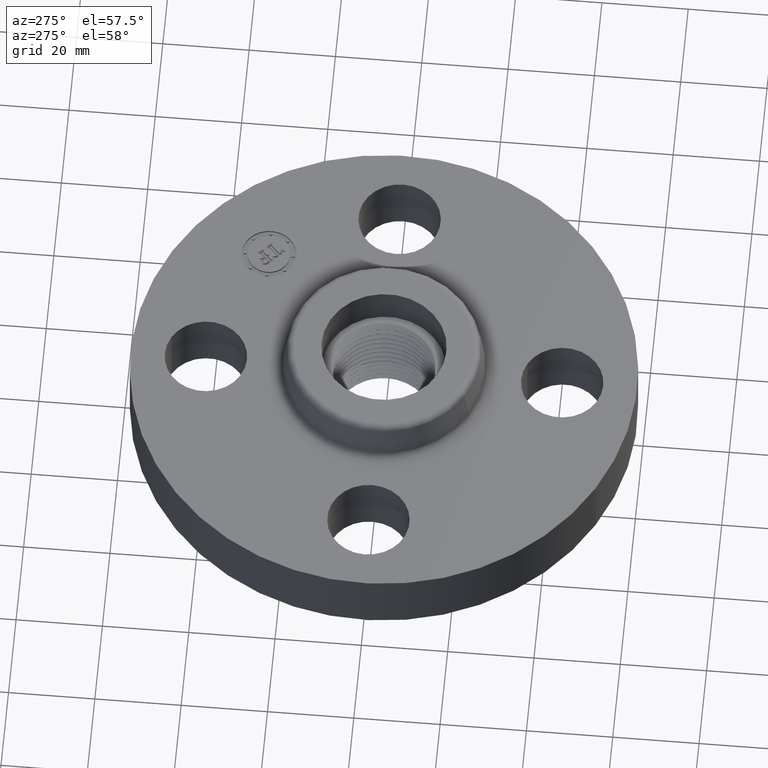
[diagram: clean part render]
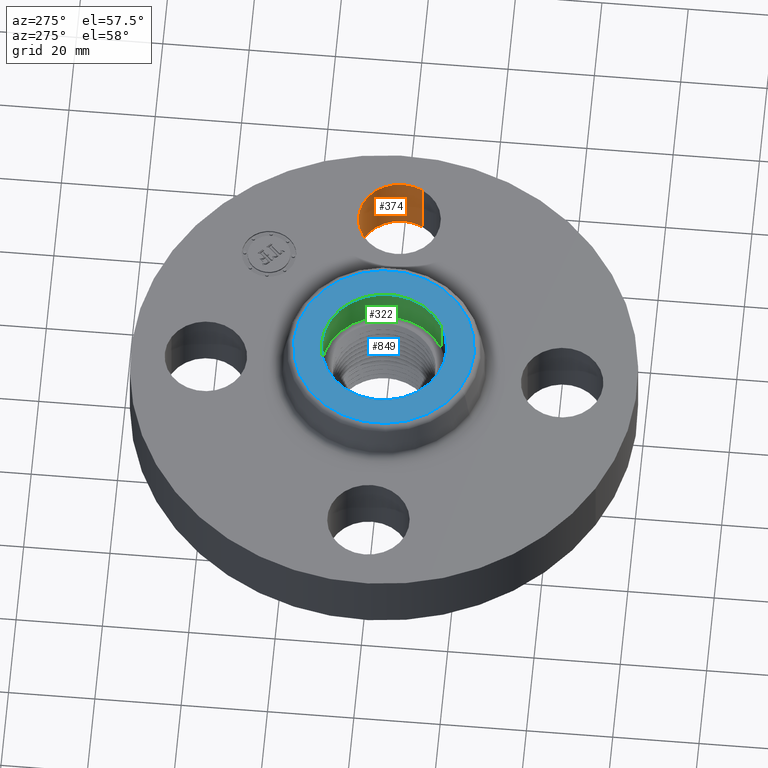
[diagram: same view with three faces highlighted in distinct colors, each labeled with its STEP entity id]
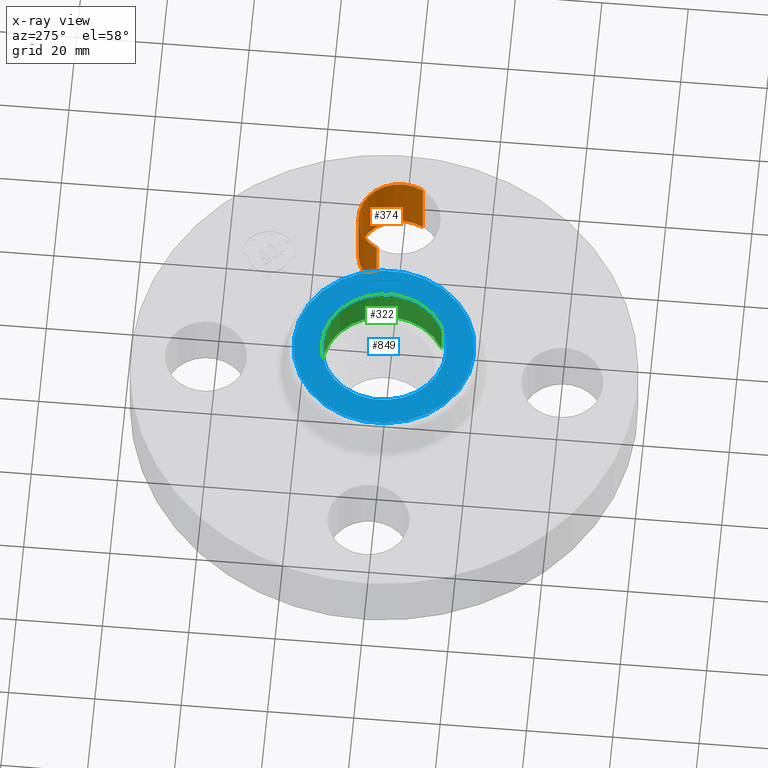
[diagram: x-ray of the same camera — body ghosted, the three highlighted faces saturated]
A machine part, auxiliary view with three faces highlighted in distinct colors.
The next image is the same camera in x-ray (body ghosted, the three faces saturated) — at least one of them is partly hidden behind the body in this view.
Their STEP definitions:

[orange] entity #374 — the highlighted cylindrical surface (partial cylindrical patch) has radius 9.525 mm, axis along (0, -0, -1).
#338=AXIS2_PLACEMENT_3D('Cylinder Axis2P3D',#335,#336,#337) ;
#351=AXIS2_PLACEMENT_3D('Circle Axis2P3D',#349,#350,$) ;
#365=AXIS2_PLACEMENT_3D('Circle Axis2P3D',#363,#364,$) ;
#335=CARTESIAN_POINT('Axis2P3D Location',(1.62500000001,0.,0.616062992128)) ;
#340=CARTESIAN_POINT('Line Origine',(1.2959065393,0.179784576977,0.310000000001)) ;
#344=CARTESIAN_POINT('Vertex',(1.2959065393,0.179784576977,0.)) ;
#346=CARTESIAN_POINT('Vertex',(1.2959065393,0.179784576977,0.620000000002)) ;
#349=CARTESIAN_POINT('Axis2P3D Location',(1.62500000001,0.,0.)) ;
#353=CARTESIAN_POINT('Vertex',(1.95409346072,-0.179784576977,0.)) ;
#356=CARTESIAN_POINT('Line Origine',(1.95409346072,-0.179784576977,0.310000000001)) ;
#360=CARTESIAN_POINT('Vertex',(1.95409346072,-0.179784576977,0.620000000002)) ;
#363=CARTESIAN_POINT('Axis2P3D Location',(1.62500000001,0.,0.620000000002)) ;
#336=DIRECTION('Axis2P3D Direction',(0.,-0.,-0.0393700787402)) ;
#337=DIRECTION('Axis2P3D XDirection',(0.0345504945626,-0.0188750212049,0.)) ;
#341=DIRECTION('Vector Direction',(0.,0.,-0.0393700787402)) ;
#350=DIRECTION('Axis2P3D Direction',(0.,-0.,-0.0393700787402)) ;
#357=DIRECTION('Vector Direction',(0.,0.,-0.0393700787402)) ;
#364=DIRECTION('Axis2P3D Direction',(0.,-0.,-0.0393700787402)) ;
#342=VECTOR('Line Direction',#341,0.0393700787402) ;
#358=VECTOR('Line Direction',#357,0.0393700787402) ;
#369=ORIENTED_EDGE('',*,*,#348,.F.) ;
#370=ORIENTED_EDGE('',*,*,#355,.T.) ;
#371=ORIENTED_EDGE('',*,*,#362,.T.) ;
#372=ORIENTED_EDGE('',*,*,#367,.F.) ;
#374=ADVANCED_FACE('PartBody',(#373),#339,.F.) ;
#352=CIRCLE('generated circle',#351,0.375000000001) ;
#366=CIRCLE('generated circle',#365,0.375000000001) ;
#339=CYLINDRICAL_SURFACE('generated cylinder',#338,0.375000000001) ;
#348=EDGE_CURVE('',#345,#347,#343,.F.) ;
#355=EDGE_CURVE('',#345,#354,#352,.T.) ;
#362=EDGE_CURVE('',#354,#361,#359,.F.) ;
#367=EDGE_CURVE('',#347,#361,#366,.T.) ;
#368=EDGE_LOOP('',(#369,#370,#371,#372)) ;
#373=FACE_OUTER_BOUND('',#368,.T.) ;
#343=LINE('Line',#340,#342) ;
#359=LINE('Line',#356,#358) ;
#345=VERTEX_POINT('',#344) ;
#347=VERTEX_POINT('',#346) ;
#354=VERTEX_POINT('',#353) ;
#361=VERTEX_POINT('',#360) ;

[blue] entity #849 — the highlighted planar face has unit normal (0, 0, -1).
#299=AXIS2_PLACEMENT_3D('Circle Axis2P3D',#297,#298,$) ;
#325=AXIS2_PLACEMENT_3D('Circle Axis2P3D',#323,#324,$) ;
#563=AXIS2_PLACEMENT_3D('Circle Axis2P3D',#561,#562,$) ;
#582=AXIS2_PLACEMENT_3D('Circle Axis2P3D',#580,#581,$) ;
#839=AXIS2_PLACEMENT_3D('Plane Axis2P3D',#836,#837,#838) ;
#297=CARTESIAN_POINT('Axis2P3D Location',(0.,0.,1.)) ;
#301=CARTESIAN_POINT('Vertex',(-0.273272557005,0.50022206028,1.)) ;
#303=CARTESIAN_POINT('Vertex',(0.273272557005,-0.50022206028,1.)) ;
#323=CARTESIAN_POINT('Axis2P3D Location',(0.,0.,1.)) ;
#558=CARTESIAN_POINT('Vertex',(0.394399308808,0.721943092224,1.)) ;
#561=CARTESIAN_POINT('Axis2P3D Location',(0.,0.,1.)) ;
#565=CARTESIAN_POINT('Vertex',(-0.394399308808,-0.721943092224,1.)) ;
#580=CARTESIAN_POINT('Axis2P3D Location',(0.,0.,1.)) ;
#836=CARTESIAN_POINT('Axis2P3D Location',(0.,0.822649769463,1.)) ;
#298=DIRECTION('Axis2P3D Direction',(0.,0.,0.0393700787402)) ;
#324=DIRECTION('Axis2P3D Direction',(0.,0.,0.0393700787402)) ;
#562=DIRECTION('Axis2P3D Direction',(0.,0.,-0.0393700787402)) ;
#581=DIRECTION('Axis2P3D Direction',(0.,0.,-0.0393700787402)) ;
#837=DIRECTION('Axis2P3D Direction',(0.,0.,-0.0393700787402)) ;
#838=DIRECTION('Axis2P3D XDirection',(0.0393700787402,0.,0.)) ;
#842=ORIENTED_EDGE('',*,*,#567,.F.) ;
#843=ORIENTED_EDGE('',*,*,#584,.F.) ;
#846=ORIENTED_EDGE('',*,*,#305,.T.) ;
#847=ORIENTED_EDGE('',*,*,#327,.T.) ;
#848=FACE_BOUND('',#845,.T.) ;
#849=ADVANCED_FACE('PartBody',(#844,#848),#840,.F.) ;
#300=CIRCLE('generated circle',#299,0.570000000002) ;
#326=CIRCLE('generated circle',#325,0.570000000002) ;
#564=CIRCLE('generated circle',#563,0.822649769463) ;
#583=CIRCLE('generated circle',#582,0.822649769463) ;
#305=EDGE_CURVE('',#302,#304,#300,.F.) ;
#327=EDGE_CURVE('',#304,#302,#326,.F.) ;
#567=EDGE_CURVE('',#559,#566,#564,.T.) ;
#584=EDGE_CURVE('',#566,#559,#583,.T.) ;
#841=EDGE_LOOP('',(#842,#843)) ;
#845=EDGE_LOOP('',(#846,#847)) ;
#844=FACE_OUTER_BOUND('',#841,.T.) ;
#840=PLANE('',#839) ;
#302=VERTEX_POINT('',#301) ;
#304=VERTEX_POINT('',#303) ;
#559=VERTEX_POINT('',#558) ;
#566=VERTEX_POINT('',#565) ;

[green] entity #322 — the highlighted cylindrical surface (partial cylindrical patch) has radius 14.478 mm, axis along (0, 0, 1).
#51=AXIS2_PLACEMENT_3D('Circle Axis2P3D',#49,#50,$) ;
#295=AXIS2_PLACEMENT_3D('Cylinder Axis2P3D',#292,#293,#294) ;
#299=AXIS2_PLACEMENT_3D('Circle Axis2P3D',#297,#298,$) ;
#44=CARTESIAN_POINT('Vertex',(-0.273272557005,0.50022206028,0.620000000002)) ;
#46=CARTESIAN_POINT('Vertex',(0.273272557005,-0.50022206028,0.620000000002)) ;
#49=CARTESIAN_POINT('Axis2P3D Location',(0.,0.,0.620000000002)) ;
#292=CARTESIAN_POINT('Axis2P3D Location',(0.,0.,0.620000000002)) ;
#297=CARTESIAN_POINT('Axis2P3D Location',(0.,0.,1.)) ;
#301=CARTESIAN_POINT('Vertex',(-0.273272557005,0.50022206028,1.)) ;
#303=CARTESIAN_POINT('Vertex',(0.273272557005,-0.50022206028,1.)) ;
#306=CARTESIAN_POINT('Line Origine',(-0.273272557005,0.50022206028,0.810000000003)) ;
#311=CARTESIAN_POINT('Line Origine',(0.273272557005,-0.50022206028,0.810000000003)) ;
#50=DIRECTION('Axis2P3D Direction',(0.,0.,0.0393700787402)) ;
#293=DIRECTION('Axis2P3D Direction',(0.,0.,0.0393700787402)) ;
#294=DIRECTION('Axis2P3D XDirection',(-0.0188750212049,0.0345504945626,0.)) ;
#298=DIRECTION('Axis2P3D Direction',(0.,0.,0.0393700787402)) ;
#307=DIRECTION('Vector Direction',(0.,0.,0.0393700787402)) ;
#312=DIRECTION('Vector Direction',(0.,0.,0.0393700787402)) ;
#308=VECTOR('Line Direction',#307,0.0393700787402) ;
#313=VECTOR('Line Direction',#312,0.0393700787402) ;
#317=ORIENTED_EDGE('',*,*,#305,.F.) ;
#318=ORIENTED_EDGE('',*,*,#310,.F.) ;
#319=ORIENTED_EDGE('',*,*,#53,.F.) ;
#320=ORIENTED_EDGE('',*,*,#315,.T.) ;
#322=ADVANCED_FACE('PartBody',(#321),#296,.F.) ;
#52=CIRCLE('generated circle',#51,0.570000000002) ;
#300=CIRCLE('generated circle',#299,0.570000000002) ;
#296=CYLINDRICAL_SURFACE('generated cylinder',#295,0.570000000002) ;
#53=EDGE_CURVE('',#47,#45,#52,.T.) ;
#305=EDGE_CURVE('',#302,#304,#300,.F.) ;
#310=EDGE_CURVE('',#45,#302,#309,.T.) ;
#315=EDGE_CURVE('',#47,#304,#314,.T.) ;
#316=EDGE_LOOP('',(#317,#318,#319,#320)) ;
#321=FACE_OUTER_BOUND('',#316,.T.) ;
#309=LINE('Line',#306,#308) ;
#314=LINE('Line',#311,#313) ;
#45=VERTEX_POINT('',#44) ;
#47=VERTEX_POINT('',#46) ;
#302=VERTEX_POINT('',#301) ;
#304=VERTEX_POINT('',#303) ;